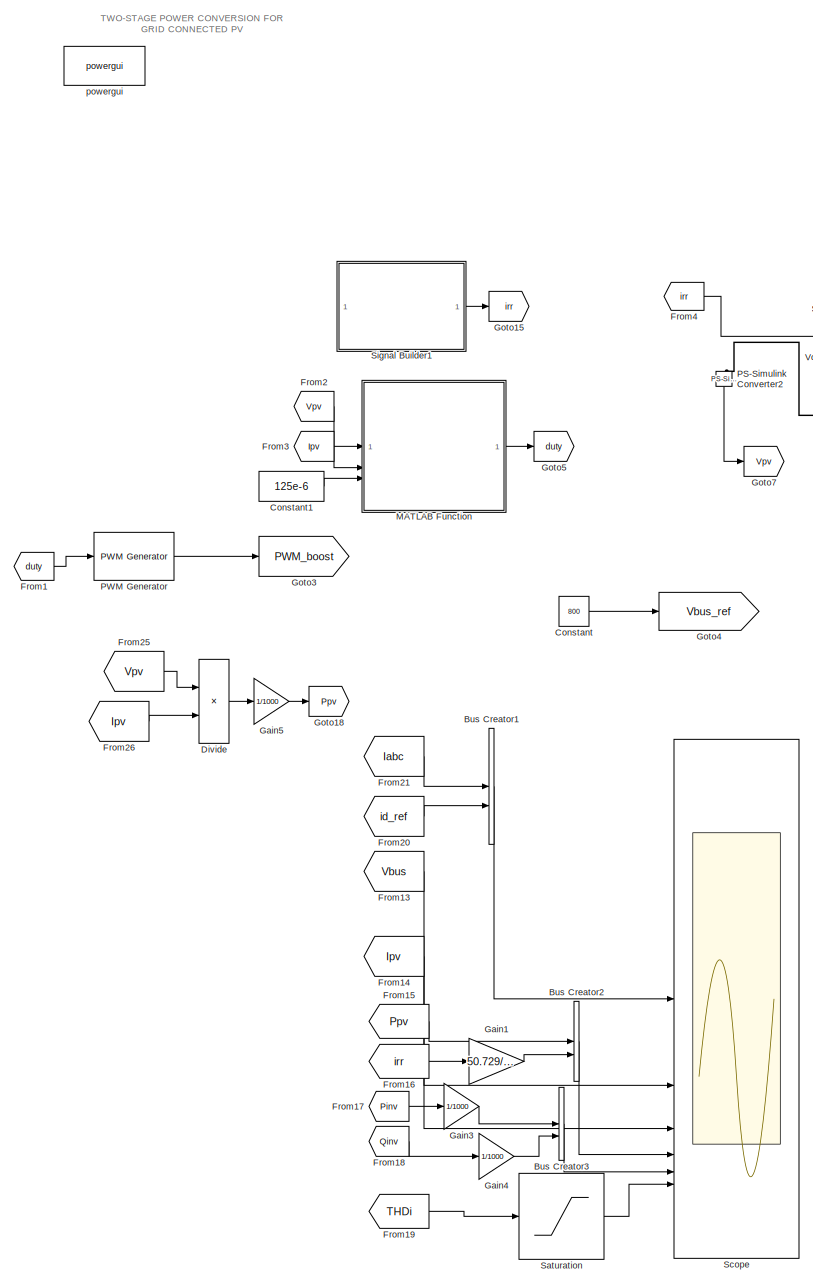
[diagram: root canvas - part 1/5, left side, full height]
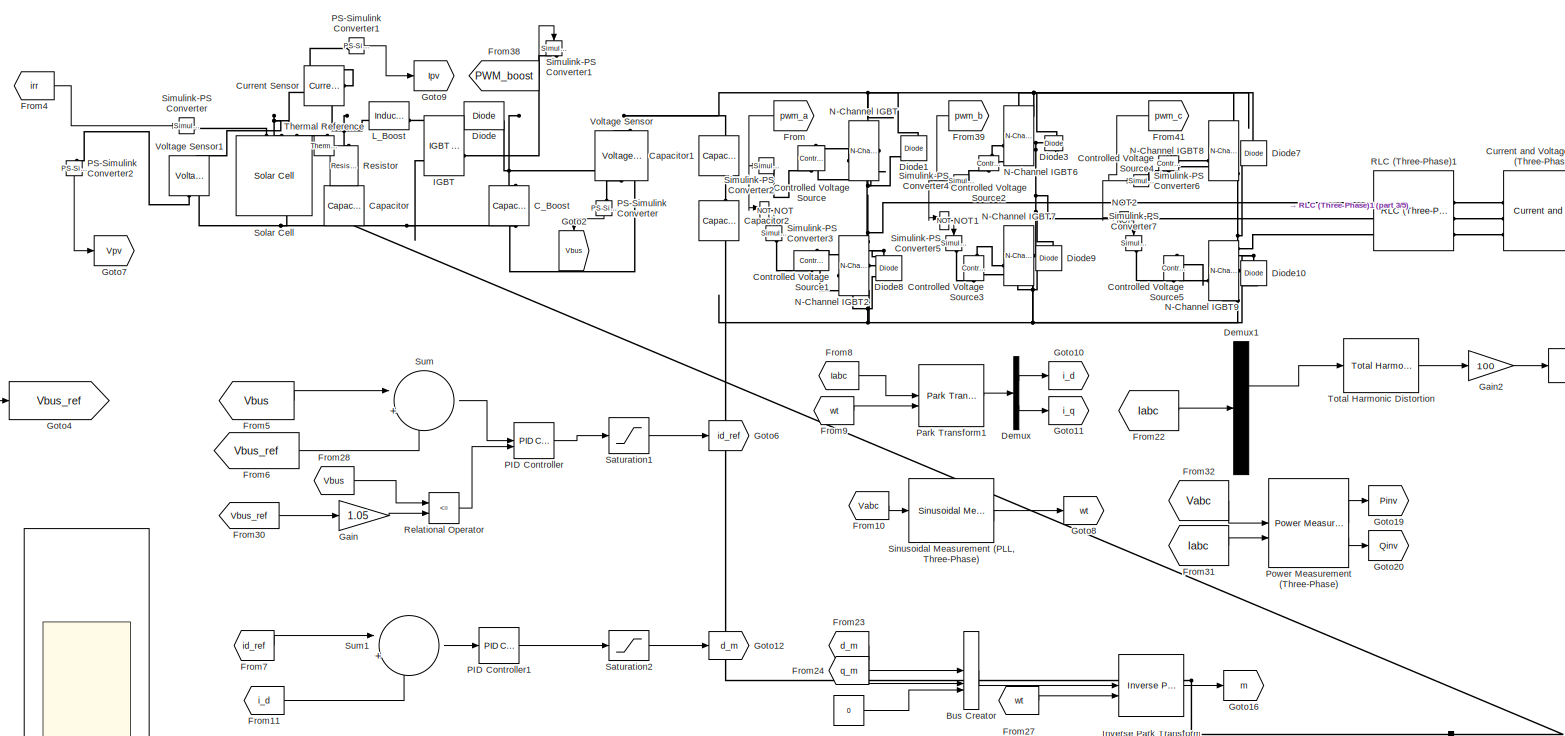
[diagram: root canvas - part 2/5, central region]
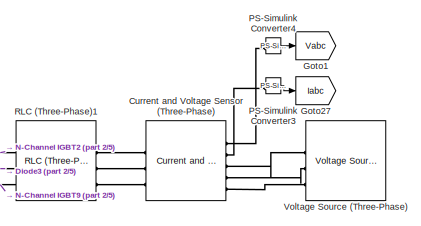
[diagram: root canvas - part 3/5, top right region]
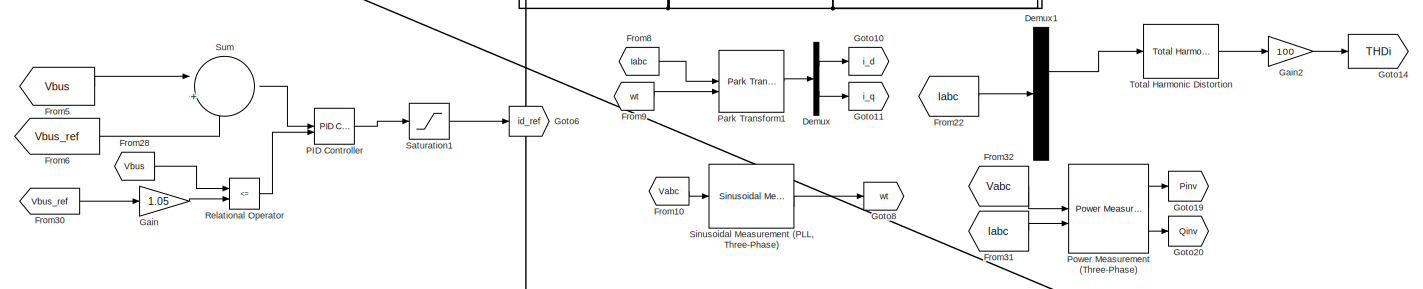
[diagram: root canvas - part 4/5, central region]
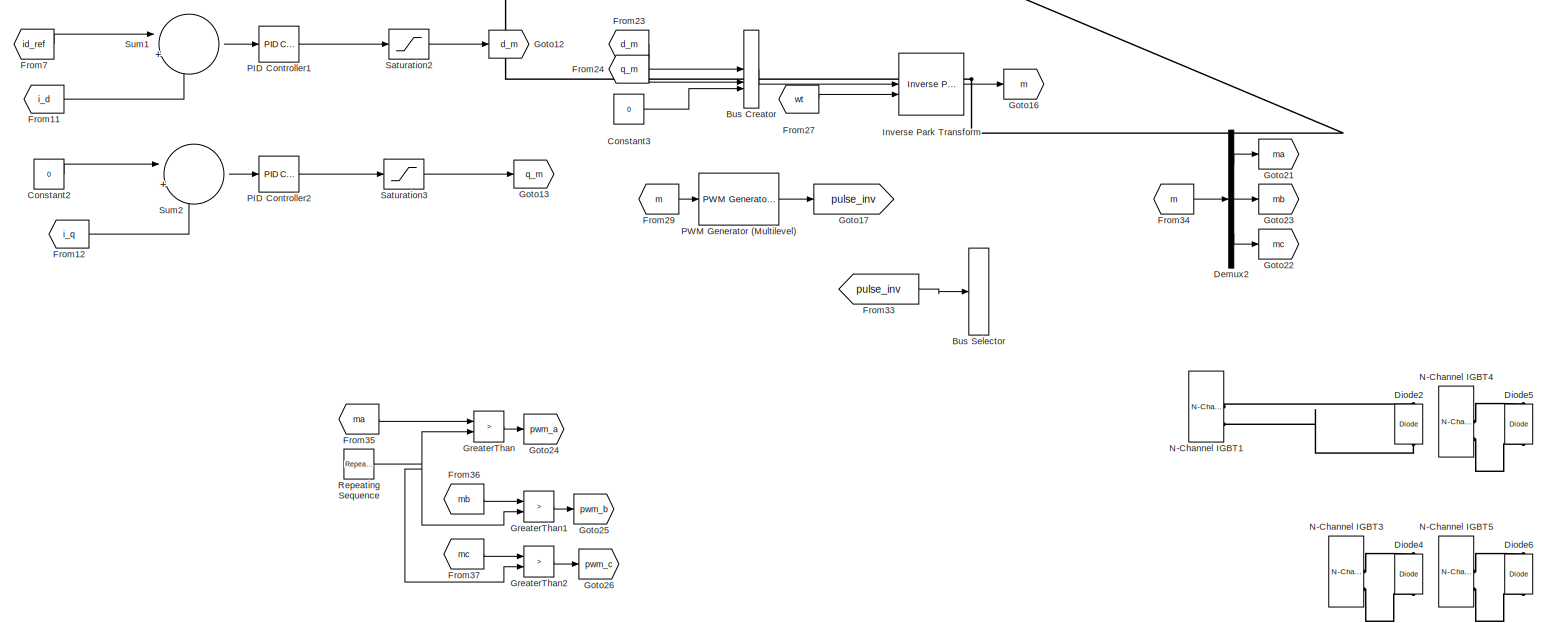
[diagram: root canvas - part 5/5, bottom right region]
MODEL slx_ec3324253b40
KIND model
CONFIG AbsTol = auto
CONFIG EnableMultiTasking = off
CONFIG FixedStep = Ts
CONFIG MaxStep = auto
CONFIG MinStep = auto
CONFIG RelTol = 1e-3
CONFIG SampleTimeConstraint = Unconstrained
CONFIG SolverName = FixedStepDiscrete
CONFIG StartTime = 0.0
CONFIG StopTime = 4
BLOCK [BusCreator] Bus Creator
  DisplayOption = bar
  InheritFromInputs = on
  Inputs = 3
BLOCK [BusCreator] Bus Creator1
  DisplayOption = bar
  InheritFromInputs = on
  Inputs = 2
BLOCK [BusCreator] Bus Creator2
  DisplayOption = bar
  InheritFromInputs = on
  Inputs = 2
BLOCK [BusCreator] Bus Creator3
  DisplayOption = bar
  InheritFromInputs = on
  Inputs = 2
BLOCK [BusSelector] Bus Selector
  OutputSignals = signal1,signal2
BLOCK [Reference] C_Boost  REF=fl_lib/Electrical/Electrical Elements/Capacitor
  NameLocation = left
  SourceBlock = fl_lib/Electrical/Electrical Elements/Capacitor
  SourceType = Capacitor
BLOCK [Reference] Capacitor  REF=fl_lib/Electrical/Electrical Elements/Capacitor
  NameLocation = left
  SourceBlock = fl_lib/Electrical/Electrical Elements/Capacitor
  SourceType = Capacitor
BLOCK [Reference] Capacitor1  REF=fl_lib/Electrical/Electrical Elements/Capacitor
  NameLocation = left
  SourceBlock = fl_lib/Electrical/Electrical Elements/Capacitor
  SourceType = Capacitor
BLOCK [Reference] Capacitor2  REF=fl_lib/Electrical/Electrical Elements/Capacitor
  NameLocation = left
  SourceBlock = fl_lib/Electrical/Electrical Elements/Capacitor
  SourceType = Capacitor
BLOCK [Constant] Constant
  Value = 800
BLOCK [Constant] Constant1
  Value = 125e-6
BLOCK [Constant] Constant2
  Value = 0
BLOCK [Constant] Constant3
  Value = 0
BLOCK [Reference] Controlled Voltage Source  REF=fl_lib/Electrical/Electrical Sources/Controlled Voltage
Source
  NameLocation = right
  SourceBlock = fl_lib/Electrical/Electrical Sources/Controlled Voltage\nSource
  SourceType = Controlled Voltage\nSource
BLOCK [Reference] Controlled Voltage Source1  REF=fl_lib/Electrical/Electrical Sources/Controlled Voltage
Source
  NameLocation = right
  SourceBlock = fl_lib/Electrical/Electrical Sources/Controlled Voltage\nSource
  SourceType = Controlled Voltage\nSource
BLOCK [Reference] Controlled Voltage Source2  REF=fl_lib/Electrical/Electrical Sources/Controlled Voltage
Source
  NameLocation = right
  SourceBlock = fl_lib/Electrical/Electrical Sources/Controlled Voltage\nSource
  SourceType = Controlled Voltage\nSource
BLOCK [Reference] Controlled Voltage Source3  REF=fl_lib/Electrical/Electrical Sources/Controlled Voltage
Source
  NameLocation = right
  SourceBlock = fl_lib/Electrical/Electrical Sources/Controlled Voltage\nSource
  SourceType = Controlled Voltage\nSource
BLOCK [Reference] Controlled Voltage Source4  REF=fl_lib/Electrical/Electrical Sources/Controlled Voltage
Source
  NameLocation = right
  SourceBlock = fl_lib/Electrical/Electrical Sources/Controlled Voltage\nSource
  SourceType = Controlled Voltage\nSource
BLOCK [Reference] Controlled Voltage Source5  REF=fl_lib/Electrical/Electrical Sources/Controlled Voltage
Source
  NameLocation = right
  SourceBlock = fl_lib/Electrical/Electrical Sources/Controlled Voltage\nSource
  SourceType = Controlled Voltage\nSource
BLOCK [Reference] Current Sensor  REF=fl_lib/Electrical/Electrical Sensors/Current Sensor
  SourceBlock = fl_lib/Electrical/Electrical Sensors/Current Sensor
  SourceType = Current Sensor
BLOCK [Reference] Current and Voltage Sensor (Three-Phase)  REF=ee_lib/Sensors &
Transducers/Current and Voltage
Sensor (Three-Phase)
  SourceBlock = ee_lib/Sensors &\nTransducers/Current and Voltage\nSensor (Three-Phase)
  SourceType = Current and Voltage\nSensor (Three-Phase)
BLOCK [Demux] Demux
  Outputs = 2
BLOCK [Demux] Demux1
  Outputs = 2
BLOCK [Demux] Demux2
  Outputs = 3
BLOCK [Reference] Diode  REF=fl_lib/Electrical/Electrical Elements/Diode
  SourceBlock = fl_lib/Electrical/Electrical Elements/Diode
  SourceType = Diode
BLOCK [Reference] Diode1  REF=fl_lib/Electrical/Electrical Elements/Diode
  NameLocation = right
  SourceBlock = fl_lib/Electrical/Electrical Elements/Diode
  SourceType = Diode
BLOCK [Reference] Diode10  REF=fl_lib/Electrical/Electrical Elements/Diode
  NameLocation = right
  SourceBlock = fl_lib/Electrical/Electrical Elements/Diode
  SourceType = Diode
BLOCK [Reference] Diode2  REF=fl_lib/Electrical/Electrical Elements/Diode
  NameLocation = right
  SourceBlock = fl_lib/Electrical/Electrical Elements/Diode
  SourceType = Diode
BLOCK [Reference] Diode3  REF=fl_lib/Electrical/Electrical Elements/Diode
  NameLocation = right
  SourceBlock = fl_lib/Electrical/Electrical Elements/Diode
  SourceType = Diode
BLOCK [Reference] Diode4  REF=fl_lib/Electrical/Electrical Elements/Diode
  NameLocation = right
  SourceBlock = fl_lib/Electrical/Electrical Elements/Diode
  SourceType = Diode
BLOCK [Reference] Diode5  REF=fl_lib/Electrical/Electrical Elements/Diode
  NameLocation = right
  SourceBlock = fl_lib/Electrical/Electrical Elements/Diode
  SourceType = Diode
BLOCK [Reference] Diode6  REF=fl_lib/Electrical/Electrical Elements/Diode
  NameLocation = right
  SourceBlock = fl_lib/Electrical/Electrical Elements/Diode
  SourceType = Diode
BLOCK [Reference] Diode7  REF=fl_lib/Electrical/Electrical Elements/Diode
  NameLocation = right
  SourceBlock = fl_lib/Electrical/Electrical Elements/Diode
  SourceType = Diode
BLOCK [Reference] Diode8  REF=fl_lib/Electrical/Electrical Elements/Diode
  NameLocation = right
  SourceBlock = fl_lib/Electrical/Electrical Elements/Diode
  SourceType = Diode
BLOCK [Reference] Diode9  REF=fl_lib/Electrical/Electrical Elements/Diode
  NameLocation = right
  SourceBlock = fl_lib/Electrical/Electrical Elements/Diode
  SourceType = Diode
BLOCK [Product] Divide
  Inputs = **
BLOCK [From] From
  GotoTag = pwm_a
  NameLocation = top
  TagVisibility = global
BLOCK [From] From1
  GotoTag = duty
  TagVisibility = global
BLOCK [From] From10
  GotoTag = Vabc
BLOCK [From] From11
  GotoTag = i_d
BLOCK [From] From12
  GotoTag = i_q
BLOCK [From] From13
  GotoTag = Vbus
BLOCK [From] From14
  GotoTag = Ipv
BLOCK [From] From15
  GotoTag = Ppv
BLOCK [From] From16
  GotoTag = irr
BLOCK [From] From17
  GotoTag = Pinv
  TagVisibility = global
BLOCK [From] From18
  GotoTag = Qinv
  TagVisibility = global
BLOCK [From] From19
  GotoTag = THDi
BLOCK [From] From2
  GotoTag = Vpv
BLOCK [From] From20
  GotoTag = id_ref
BLOCK [From] From21
  GotoTag = Iabc
BLOCK [From] From22
  GotoTag = Iabc
BLOCK [From] From23
  GotoTag = d_m
BLOCK [From] From24
  GotoTag = q_m
BLOCK [From] From25
  GotoTag = Vpv
BLOCK [From] From26
  GotoTag = Ipv
BLOCK [From] From27
  GotoTag = wt
BLOCK [From] From28
  GotoTag = Vbus
BLOCK [From] From29
  Commented = on
  GotoTag = m
BLOCK [From] From3
  GotoTag = Ipv
BLOCK [From] From30
  GotoTag = Vbus_ref
BLOCK [From] From31
  GotoTag = Iabc
BLOCK [From] From32
  GotoTag = Vabc
BLOCK [From] From33
  GotoTag = pulse_inv
BLOCK [From] From34
  GotoTag = m
BLOCK [From] From35
  GotoTag = ma
BLOCK [From] From36
  GotoTag = mb
BLOCK [From] From37
  GotoTag = mc
BLOCK [From] From38
  GotoTag = PWM_boost
  TagVisibility = global
BLOCK [From] From39
  GotoTag = pwm_b
  NameLocation = top
  TagVisibility = global
BLOCK [From] From4
  GotoTag = irr
BLOCK [From] From41
  GotoTag = pwm_c
  NameLocation = top
  TagVisibility = global
BLOCK [From] From5
  GotoTag = Vbus
  TagVisibility = global
BLOCK [From] From6
  GotoTag = Vbus_ref
BLOCK [From] From7
  GotoTag = id_ref
  TagVisibility = global
BLOCK [From] From8
  GotoTag = Iabc
BLOCK [From] From9
  GotoTag = wt
BLOCK [Gain] Gain
  Gain = 1.05
BLOCK [Gain] Gain1
  Gain = 50.729/1000
BLOCK [Gain] Gain2
  Gain = 100
BLOCK [Gain] Gain3
  Gain = 1/1000
BLOCK [Gain] Gain4
  Gain = 1/1000
BLOCK [Gain] Gain5
  Gain = 1/1000
BLOCK [Goto] Goto1
  GotoTag = Vabc
BLOCK [Goto] Goto10
  GotoTag = i_d
BLOCK [Goto] Goto11
  GotoTag = i_q
BLOCK [Goto] Goto12
  GotoTag = d_m
  TagVisibility = global
BLOCK [Goto] Goto13
  GotoTag = q_m
  TagVisibility = global
BLOCK [Goto] Goto14
  GotoTag = THDi
BLOCK [Goto] Goto15
  GotoTag = irr
BLOCK [Goto] Goto16
  GotoTag = m
BLOCK [Goto] Goto17
  Commented = on
  GotoTag = pulse_inv
BLOCK [Goto] Goto18
  GotoTag = Ppv
BLOCK [Goto] Goto19
  GotoTag = Pinv
  TagVisibility = global
BLOCK [Goto] Goto2
  GotoTag = Vbus
  NameLocation = left
  TagVisibility = global
BLOCK [Goto] Goto20
  GotoTag = Qinv
  TagVisibility = global
BLOCK [Goto] Goto21
  GotoTag = ma
BLOCK [Goto] Goto22
  GotoTag = mc
BLOCK [Goto] Goto23
  GotoTag = mb
BLOCK [Goto] Goto24
  GotoTag = pwm_a
  TagVisibility = global
BLOCK [Goto] Goto25
  GotoTag = pwm_b
  TagVisibility = global
BLOCK [Goto] Goto26
  GotoTag = pwm_c
  TagVisibility = global
BLOCK [Goto] Goto27
  GotoTag = Iabc
BLOCK [Goto] Goto3
  GotoTag = PWM_boost
  TagVisibility = global
BLOCK [Goto] Goto4
  GotoTag = Vbus_ref
BLOCK [Goto] Goto5
  GotoTag = duty
  TagVisibility = global
BLOCK [Goto] Goto6
  GotoTag = id_ref
  TagVisibility = global
BLOCK [Goto] Goto7
  GotoTag = Vpv
BLOCK [Goto] Goto8
  GotoTag = wt
BLOCK [Goto] Goto9
  GotoTag = Ipv
BLOCK [RelationalOperator] GreaterThan
  InputSameDT = off
  Operator = >
  OutDataTypeStr = boolean
  RndMeth = Simplest
BLOCK [RelationalOperator] GreaterThan1
  InputSameDT = off
  Operator = >
  OutDataTypeStr = boolean
  RndMeth = Simplest
BLOCK [RelationalOperator] GreaterThan2
  InputSameDT = off
  Operator = >
  OutDataTypeStr = boolean
  RndMeth = Simplest
BLOCK [Reference] IGBT  REF=ee_lib/Semiconductors &
Converters/IGBT
(Ideal,
Switching)
  SourceBlock = ee_lib/Semiconductors &\nConverters/IGBT\n(Ideal,\nSwitching)
  SourceType = IGBT\n(Ideal,\nSwitching)
BLOCK [Reference] Inverse Park Transform  REF=eeTransforms/Inverse
Park Transform
  LibrarySourceBlock = ee_sl_lib/Mathematical\nTransforms/Inverse\nPark Transform
  SourceBlock = eeTransforms/Inverse\nPark Transform
  SourceType = Inverse Park Transform
BLOCK [Reference] L_Boost  REF=fl_lib/Electrical/Electrical Elements/Inductor
  SourceBlock = fl_lib/Electrical/Electrical Elements/Inductor
  SourceType = Inductor
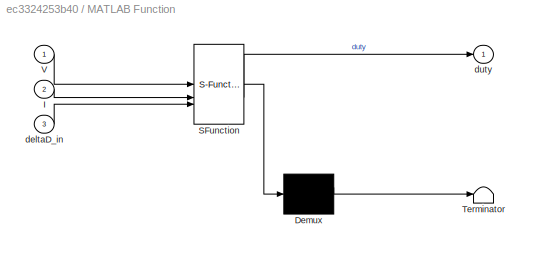
BLOCK [SubSystem] MATLAB Function
  ErrorFcn = Stateflow.Translate.translate
  PermitHierarchicalResolution = ExplicitOnly
  SFBlockType = MATLAB Function
  TreatAsAtomicUnit = on
BLOCK [Demux] MATLAB Function/ Demux 
  Outputs = 1
BLOCK [S-Function] MATLAB Function/ SFunction 
  EnableBusSupport = off
  FunctionName = sf_sfun
  PortCounts = [3 2]
  SFcnIsStateOwnerBlock = off
  SFunctionDeploymentMode = off
  Tag = Stateflow S-Function 2
BLOCK [Terminator] MATLAB Function/ Terminator 
BLOCK [Inport] MATLAB Function/I
  Port = 2
BLOCK [Inport] MATLAB Function/V
BLOCK [Inport] MATLAB Function/deltaD_in
  Port = 3
BLOCK [Outport] MATLAB Function/duty
  VectorParamsAs1DForOutWhenUnconnected = off
BLOCK [Reference] N-Channel IGBT  REF=ee_lib/Semiconductors &
Converters/N-Channel IGBT
  SourceBlock = ee_lib/Semiconductors &\nConverters/N-Channel IGBT
  SourceType = N-Channel IGBT
BLOCK [Reference] N-Channel IGBT1  REF=ee_lib/Semiconductors &
Converters/N-Channel IGBT
  SourceBlock = ee_lib/Semiconductors &\nConverters/N-Channel IGBT
  SourceType = N-Channel IGBT
BLOCK [Reference] N-Channel IGBT2  REF=ee_lib/Semiconductors &
Converters/N-Channel IGBT
  SourceBlock = ee_lib/Semiconductors &\nConverters/N-Channel IGBT
  SourceType = N-Channel IGBT
BLOCK [Reference] N-Channel IGBT3  REF=ee_lib/Semiconductors &
Converters/N-Channel IGBT
  SourceBlock = ee_lib/Semiconductors &\nConverters/N-Channel IGBT
  SourceType = N-Channel IGBT
BLOCK [Reference] N-Channel IGBT4  REF=ee_lib/Semiconductors &
Converters/N-Channel IGBT
  SourceBlock = ee_lib/Semiconductors &\nConverters/N-Channel IGBT
  SourceType = N-Channel IGBT
BLOCK [Reference] N-Channel IGBT5  REF=ee_lib/Semiconductors &
Converters/N-Channel IGBT
  SourceBlock = ee_lib/Semiconductors &\nConverters/N-Channel IGBT
  SourceType = N-Channel IGBT
BLOCK [Reference] N-Channel IGBT6  REF=ee_lib/Semiconductors &
Converters/N-Channel IGBT
  SourceBlock = ee_lib/Semiconductors &\nConverters/N-Channel IGBT
  SourceType = N-Channel IGBT
BLOCK [Reference] N-Channel IGBT7  REF=ee_lib/Semiconductors &
Converters/N-Channel IGBT
  SourceBlock = ee_lib/Semiconductors &\nConverters/N-Channel IGBT
  SourceType = N-Channel IGBT
BLOCK [Reference] N-Channel IGBT8  REF=ee_lib/Semiconductors &
Converters/N-Channel IGBT
  SourceBlock = ee_lib/Semiconductors &\nConverters/N-Channel IGBT
  SourceType = N-Channel IGBT
BLOCK [Reference] N-Channel IGBT9  REF=ee_lib/Semiconductors &
Converters/N-Channel IGBT
  SourceBlock = ee_lib/Semiconductors &\nConverters/N-Channel IGBT
  SourceType = N-Channel IGBT
BLOCK [Logic] NOT
  AllPortsSameDT = off
  IconShape = distinctive
  Operator = NOT
  OutDataTypeStr = boolean
BLOCK [Logic] NOT1
  AllPortsSameDT = off
  IconShape = distinctive
  Operator = NOT
  OutDataTypeStr = boolean
BLOCK [Logic] NOT2
  AllPortsSameDT = off
  IconShape = distinctive
  Operator = NOT
  OutDataTypeStr = boolean
BLOCK [Reference] PID Controller  REF=slpidlib/PID Controller
  LibrarySourceBlock = simulink/Continuous/PID Controller
  SourceBlock = slpidlib/PID Controller
  SourceType = PID 1dof
BLOCK [Reference] PID Controller1  REF=slpidlib/PID Controller
  LibrarySourceBlock = simulink/Continuous/PID Controller
  SourceBlock = slpidlib/PID Controller
  SourceType = PID 1dof
BLOCK [Reference] PID Controller2  REF=slpidlib/PID Controller
  LibrarySourceBlock = simulink/Continuous/PID Controller
  SourceBlock = slpidlib/PID Controller
  SourceType = PID 1dof
BLOCK [Reference] PS-Simulink Converter  REF=nesl_utility/PS-Simulink
Converter
  NameLocation = left
  SourceBlock = nesl_utility/PS-Simulink\nConverter
  SourceType = PS-Simulink\nConverter
BLOCK [Reference] PS-Simulink Converter1  REF=nesl_utility/PS-Simulink
Converter
  SourceBlock = nesl_utility/PS-Simulink\nConverter
  SourceType = PS-Simulink\nConverter
BLOCK [Reference] PS-Simulink Converter2  REF=nesl_utility/PS-Simulink
Converter
  NameLocation = left
  SourceBlock = nesl_utility/PS-Simulink\nConverter
  SourceType = PS-Simulink\nConverter
BLOCK [Reference] PS-Simulink Converter3  REF=nesl_utility/PS-Simulink
Converter
  SourceBlock = nesl_utility/PS-Simulink\nConverter
  SourceType = PS-Simulink\nConverter
BLOCK [Reference] PS-Simulink Converter4  REF=nesl_utility/PS-Simulink
Converter
  SourceBlock = nesl_utility/PS-Simulink\nConverter
  SourceType = PS-Simulink\nConverter
BLOCK [Reference] PWM Generator  REF=eePwmGenerator/PWM Generator
  LibrarySourceBlock = ee_sl_lib/Pulse Width\nModulation/PWM Generator
  SourceBlock = eePwmGenerator/PWM Generator
  SourceType = PWM Generator
BLOCK [Reference] PWM Generator (Multilevel)  REF=eePwmGeneratorMultilevel/PWM Generator
(Multilevel)
  Commented = on
  LibrarySourceBlock = ee_sl_lib/Pulse Width\nModulation/PWM Generator\n(Multilevel)
  SourceBlock = eePwmGeneratorMultilevel/PWM Generator\n(Multilevel)
  SourceType = PWM Generator (Multilevel)
BLOCK [Reference] Park Transform1  REF=eeTransforms/Park Transform
  LibrarySourceBlock = ee_sl_lib/Mathematical\nTransforms/Park Transform
  SourceBlock = eeTransforms/Park Transform
  SourceType = Park Transform
BLOCK [Reference] Power Measurement (Three-Phase)  REF=eePowerMeasurement/Power Measurement
(Three-Phase)
  LibrarySourceBlock = ee_sl_lib/Measurements/Power Measurement\n(Three-Phase)
  SourceBlock = eePowerMeasurement/Power Measurement\n(Three-Phase)
  SourceType = Power Measurement (Three-Phase)
BLOCK [Reference] RLC (Three-Phase)1  REF=ee_lib/Passive/RLC Assemblies/RLC (Three-Phase)
  SourceBlock = ee_lib/Passive/RLC Assemblies/RLC (Three-Phase)
  SourceType = RLC (Three-Phase)
BLOCK [RelationalOperator] Relational Operator
  InputSameDT = off
  Operator = <=
  OutDataTypeStr = boolean
  RndMeth = Simplest
BLOCK [Reference] Repeating Sequence  REF=simulink/Sources/Repeating
Sequence
  SourceBlock = simulink/Sources/Repeating\nSequence
  SourceType = Repeating table
BLOCK [Reference] Resistor  REF=fl_lib/Electrical/Electrical Elements/Resistor
  NameLocation = left
  SourceBlock = fl_lib/Electrical/Electrical Elements/Resistor
  SourceType = Resistor
BLOCK [Saturate] Saturation
  LowerLimit = 0
  UpperLimit = 15
BLOCK [Saturate] Saturation1
  LowerLimit = 0
  UpperLimit = 150
BLOCK [Saturate] Saturation2
  LowerLimit = -1.2
  UpperLimit = 1.2
BLOCK [Saturate] Saturation3
  LowerLimit = -1.2
  UpperLimit = 1.2
BLOCK [Scope] Scope
  ActiveDisplayYMaximum = 5.9324644558141468
  ActiveDisplayYMinimum = -0.59321732144132833
  Floating = off
  GraphicalSettings = {"GraphicalSettings":{"LegacySettings":true,"Style":{"AxesScalingProperties":{"ScaleAxesLimitsAtStop":false},"Style":{"PlotType":"Auto"}}}}
  LayoutDimensionsString = [3 2]
  MultipleDisplayCache = [{"MaxYLimMag":10,"MaxYLimReal":5.9324644558141468,"MinYLimMag":0,"MinYLimReal":-0.59321732144132833,"PlotAsMagnitudePhase":false,"ShowGrid":true,"ShowLegend":false,"Title":"%<SignalLabel>","YLabel":""},{"MaxYLimMag":10,"MaxYLimReal":5.9324644558141468,"MinYLimMag":0,"MinYLimReal":-0.59321732144132833,"PlotAsMagnitudePhase":false,"ShowGrid":true,"ShowLegend":false,"Title":"%<SignalLabel>","YLabel"...<+812ch>
  NumInputPorts = 6
  ScopeFrameLocation = container
  WasSavedAsWebScope = on
  WindowPosition = [128.000000,48.000000,1280.000000,768.000000,]
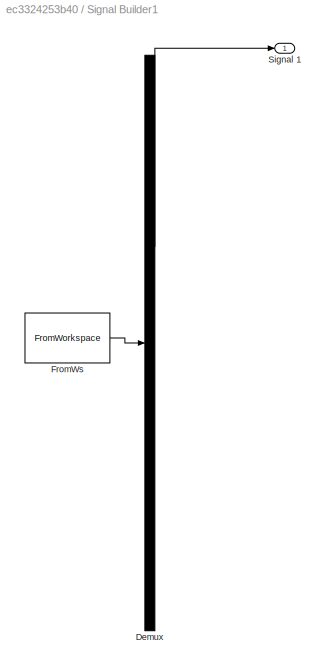
BLOCK [SubSystem] Signal Builder1
  ClipboardFcn = sigbuilder_block('clipboard');
  CloseFcn = sigbuilder_block('close');
  ContinueFcn = sigbuilder_block('continue');
  CopyFcn = sigbuilder_block('copy');
  DeleteFcn = sigbuilder_block('delete');
  LoadFcn = sigbuilder_block('load');
  MaskHideContents = on
  ModelCloseFcn = sigbuilder_block('modelClose');
  NameChangeFcn = sigbuilder_block('namechange');
  OpenFcn = sigbuilder_block('open',[252.75 107.25 644.25 387.75 ]);
  PauseFcn = sigbuilder_block('pause');
  PreSaveFcn = sigbuilder_block('preSave');
  StartFcn = sigbuilder_block('start');
  StopFcn = sigbuilder_block('stop');
  Tag = STV Subsys
BLOCK [Demux] Signal Builder1/Demux
  DisplayOption = none
  Outputs = 1
  Tag = STV Demux
BLOCK [FromWorkspace] Signal Builder1/FromWs
  Tag = STV FromWs
  VariableName = tuvar
BLOCK [Outport] Signal Builder1/Signal 1
  Tag = STV Outport
  VectorParamsAs1DForOutWhenUnconnected = off
BLOCK [Reference] Simulink-PS Converter  REF=nesl_utility/Simulink-PS
Converter
  SourceBlock = nesl_utility/Simulink-PS\nConverter
  SourceType = Simulink-PS\nConverter
BLOCK [Reference] Simulink-PS Converter1  REF=nesl_utility/Simulink-PS
Converter
  NameLocation = left
  SourceBlock = nesl_utility/Simulink-PS\nConverter
  SourceType = Simulink-PS\nConverter
BLOCK [Reference] Simulink-PS Converter2  REF=nesl_utility/Simulink-PS
Converter
  SourceBlock = nesl_utility/Simulink-PS\nConverter
  SourceType = Simulink-PS\nConverter
BLOCK [Reference] Simulink-PS Converter3  REF=nesl_utility/Simulink-PS
Converter
  NameLocation = left
  SourceBlock = nesl_utility/Simulink-PS\nConverter
  SourceType = Simulink-PS\nConverter
BLOCK [Reference] Simulink-PS Converter4  REF=nesl_utility/Simulink-PS
Converter
  SourceBlock = nesl_utility/Simulink-PS\nConverter
  SourceType = Simulink-PS\nConverter
BLOCK [Reference] Simulink-PS Converter5  REF=nesl_utility/Simulink-PS
Converter
  NameLocation = left
  SourceBlock = nesl_utility/Simulink-PS\nConverter
  SourceType = Simulink-PS\nConverter
BLOCK [Reference] Simulink-PS Converter6  REF=nesl_utility/Simulink-PS
Converter
  SourceBlock = nesl_utility/Simulink-PS\nConverter
  SourceType = Simulink-PS\nConverter
BLOCK [Reference] Simulink-PS Converter7  REF=nesl_utility/Simulink-PS
Converter
  NameLocation = left
  SourceBlock = nesl_utility/Simulink-PS\nConverter
  SourceType = Simulink-PS\nConverter
BLOCK [Reference] Sinusoidal Measurement (PLL, Three-Phase)  REF=eeSinusoidalMeasurementV2/Sinusoidal Measurement
(PLL, Three-Phase)
  LibrarySourceBlock = ee_sl_lib/Measurements/Sinusoidal Measurement\n(PLL, Three-Phase)
  SourceBlock = eeSinusoidalMeasurementV2/Sinusoidal Measurement\n(PLL, Three-Phase)
  SourceType = Sinusoidal Measurement (PLL, Three-Phase)
BLOCK [Reference] Solar Cell  REF=ee_lib/Sources/Solar Cell
  NameLocation = right
  SourceBlock = ee_lib/Sources/Solar Cell
  SourceType = Solar Cell
BLOCK [Sum] Sum
  Inputs = |+-
BLOCK [Sum] Sum1
  Inputs = |+-
BLOCK [Sum] Sum2
  Inputs = |+-
BLOCK [Reference] Thermal Reference  REF=fl_lib/Thermal/Thermal Elements/Thermal Reference
  NameLocation = right
  SourceBlock = fl_lib/Thermal/Thermal Elements/Thermal Reference
  SourceType = Thermal Reference
BLOCK [Reference] Total Harmonic Distortion  REF=eeTotalHarmonicDistorsion/Total Harmonic
Distortion
  LibrarySourceBlock = ee_sl_lib/Measurements/Total Harmonic\nDistortion
  SourceBlock = eeTotalHarmonicDistorsion/Total Harmonic\nDistortion
  SourceType = Total Harmonic Distortion
BLOCK [Reference] Voltage Sensor  REF=fl_lib/Electrical/Electrical Sensors/Voltage Sensor
  NameLocation = right
  SourceBlock = fl_lib/Electrical/Electrical Sensors/Voltage Sensor
  SourceType = Voltage Sensor
BLOCK [Reference] Voltage Sensor1  REF=fl_lib/Electrical/Electrical Sensors/Voltage Sensor
  NameLocation = right
  SourceBlock = fl_lib/Electrical/Electrical Sensors/Voltage Sensor
  SourceType = Voltage Sensor
BLOCK [Reference] Voltage Source (Three-Phase)  REF=ee_lib/Sources/Voltage
Source
(Three-Phase)
  SourceBlock = ee_lib/Sources/Voltage\nSource\n(Three-Phase)
  SourceType = Voltage\nSource\n(Three-Phase)
BLOCK [Reference] powergui  REF=spspowerguiLib/powergui
  Priority = 1
  SourceBlock = spspowerguiLib/powergui
  SourceType = PSB option menu block
ANNOTATION (root): TWO-STAGE POWER CONVERSION FOR GRID CONNECTED PV
LINE Bus Creator1:1 -> Scope:1
LINE Bus Creator2:1 -> Scope:4
LINE Bus Creator3:1 -> Scope:5
LINE Bus Creator:1 -> Inverse Park Transform:1
LINE Constant1:1 -> MATLAB Function:3
LINE Constant2:1 -> Sum2:1
LINE Constant3:1 -> Bus Creator:3
LINE Constant:1 -> Goto4:1
LINE Demux1:1 -> Total Harmonic Distortion:1
LINE Demux2:1 -> Goto21:1
LINE Demux2:2 -> Goto23:1
LINE Demux2:3 -> Goto22:1
LINE Demux:1 -> Goto10:1
LINE Demux:2 -> Goto11:1
LINE Divide:1 -> Gain5:1
LINE From10:1 -> Sinusoidal Measurement (PLL, Three-Phase):1
LINE From11:1 -> Sum1:2
LINE From12:1 -> Sum2:2
LINE From13:1 -> Scope:2
LINE From14:1 -> Scope:3
LINE From15:1 -> Bus Creator2:1
LINE From16:1 -> Gain1:1
LINE From17:1 -> Gain3:1
LINE From18:1 -> Gain4:1
LINE From19:1 -> Saturation:1
LINE From1:1 -> PWM Generator:1
LINE From20:1 -> Bus Creator1:2
LINE From21:1 -> Bus Creator1:1
LINE From22:1 -> Demux1:1
LINE From23:1 -> Bus Creator:1
LINE From24:1 -> Bus Creator:2
LINE From25:1 -> Divide:1
LINE From26:1 -> Divide:2
LINE From27:1 -> Inverse Park Transform:2
LINE From28:1 -> Relational Operator:1
LINE From29:1 -> PWM Generator (Multilevel):1
LINE From2:1 -> MATLAB Function:1
LINE From30:1 -> Gain:1
LINE From31:1 -> Power Measurement (Three-Phase):2
LINE From32:1 -> Power Measurement (Three-Phase):1
LINE From33:1 -> Bus Selector:1
LINE From34:1 -> Demux2:1
LINE From35:1 -> GreaterThan:1
LINE From36:1 -> GreaterThan1:1
LINE From37:1 -> GreaterThan2:1
LINE From38:1 -> Simulink-PS Converter1:1
NET From39:1 -> NOT1:1, Simulink-PS Converter4:1
LINE From3:1 -> MATLAB Function:2
NET From41:1 -> NOT2:1, Simulink-PS Converter6:1
LINE From4:1 -> Simulink-PS Converter:1
LINE From5:1 -> Sum:1
LINE From6:1 -> Sum:2
LINE From7:1 -> Sum1:1
LINE From8:1 -> Park Transform1:1
LINE From9:1 -> Park Transform1:2
NET From:1 -> NOT:1, Simulink-PS Converter2:1
LINE Gain1:1 -> Bus Creator2:2
LINE Gain2:1 -> Goto14:1
LINE Gain3:1 -> Bus Creator3:1
LINE Gain4:1 -> Bus Creator3:2
LINE Gain5:1 -> Goto18:1
LINE Gain:1 -> Relational Operator:2
LINE GreaterThan1:1 -> Goto25:1
LINE GreaterThan2:1 -> Goto26:1
LINE GreaterThan:1 -> Goto24:1
LINE Inverse Park Transform:1 -> Goto16:1
LINE MATLAB Function:1 -> Goto5:1
LINE NOT1:1 -> Simulink-PS Converter5:1
LINE NOT2:1 -> Simulink-PS Converter7:1
LINE NOT:1 -> Simulink-PS Converter3:1
LINE PID Controller1:1 -> Saturation2:1
LINE PID Controller2:1 -> Saturation3:1
LINE PID Controller:1 -> Saturation1:1
LINE PS-Simulink Converter1:1 -> Goto9:1
LINE PS-Simulink Converter2:1 -> Goto7:1
LINE PS-Simulink Converter3:1 -> Goto27:1
LINE PS-Simulink Converter4:1 -> Goto1:1
LINE PS-Simulink Converter:1 -> Goto2:1
LINE PWM Generator (Multilevel):1 -> Goto17:1
LINE PWM Generator:1 -> Goto3:1
LINE Park Transform1:1 -> Demux:1
LINE Power Measurement (Three-Phase):1 -> Goto19:1
LINE Power Measurement (Three-Phase):2 -> Goto20:1
LINE Relational Operator:1 -> PID Controller:2
NET Repeating Sequence:1 -> GreaterThan1:2, GreaterThan2:2, GreaterThan:2
LINE Saturation1:1 -> Goto6:1
LINE Saturation2:1 -> Goto12:1
LINE Saturation3:1 -> Goto13:1
LINE Saturation:1 -> Scope:6
LINE Signal Builder1:1 -> Goto15:1
LINE Sinusoidal Measurement (PLL, Three-Phase):2 -> Goto8:1
LINE Sum1:1 -> PID Controller1:1
LINE Sum2:1 -> PID Controller2:1
LINE Sum:1 -> PID Controller:1
LINE Total Harmonic Distortion:1 -> Gain2:1
PNET net1: C_Boost:LConn1 -- Capacitor1:LConn1 -- Diode1:RConn1 -- Diode3:RConn1 -- Diode7:RConn1 -- Diode:RConn1 -- N-Channel IGBT6:RConn1 -- N-Channel IGBT8:RConn1 -- N-Channel IGBT:RConn1 -- Voltage Sensor:LConn1
PNET net2: C_Boost:RConn1 -- Capacitor2:RConn1 -- Capacitor:RConn1 -- Controlled Voltage Source1:RConn2 -- Controlled Voltage Source3:RConn2 -- Controlled Voltage Source5:RConn2 -- Diode10:LConn1 -- Diode8:LConn1 -- Diode9:LConn1 -- IGBT:RConn2 -- N-Channel IGBT2:RConn2 -- N-Channel IGBT7:RConn2 -- N-Channel IGBT9:RConn2 -- Solar Cell:RConn1 -- Voltage Sensor1:RConn2 -- Voltage Sensor:RConn2
PLINE Capacitor1:RConn1 -- Capacitor2:LConn1
PLINE Capacitor:LConn1 -- Resistor:RConn1
PLINE Controlled Voltage Source1:LConn1 -- N-Channel IGBT2:LConn1
PLINE Controlled Voltage Source1:RConn1 -- Simulink-PS Converter3:RConn1
PLINE Controlled Voltage Source2:LConn1 -- N-Channel IGBT6:LConn1
PLINE Controlled Voltage Source2:RConn1 -- Simulink-PS Converter4:RConn1
PNET net3: Controlled Voltage Source2:RConn2 -- Diode3:LConn1 -- Diode9:RConn1 -- N-Channel IGBT6:RConn2 -- N-Channel IGBT7:RConn1 -- RLC (Three-Phase)1:LConn2
PLINE Controlled Voltage Source3:LConn1 -- N-Channel IGBT7:LConn1
PLINE Controlled Voltage Source3:RConn1 -- Simulink-PS Converter5:RConn1
PLINE Controlled Voltage Source4:LConn1 -- N-Channel IGBT8:LConn1
PLINE Controlled Voltage Source4:RConn1 -- Simulink-PS Converter6:RConn1
PNET net4: Controlled Voltage Source4:RConn2 -- Diode10:RConn1 -- Diode7:LConn1 -- N-Channel IGBT8:RConn2 -- N-Channel IGBT9:RConn1 -- RLC (Three-Phase)1:LConn3
PLINE Controlled Voltage Source5:LConn1 -- N-Channel IGBT9:LConn1
PLINE Controlled Voltage Source5:RConn1 -- Simulink-PS Converter7:RConn1
PLINE Controlled Voltage Source:LConn1 -- N-Channel IGBT:LConn1
PLINE Controlled Voltage Source:RConn1 -- Simulink-PS Converter2:RConn1
PNET net5: Controlled Voltage Source:RConn2 -- Diode1:LConn1 -- Diode8:RConn1 -- N-Channel IGBT2:RConn1 -- N-Channel IGBT:RConn2 -- RLC (Three-Phase)1:LConn1
PNET net6: Current Sensor:LConn1 -- Solar Cell:LConn2 -- Voltage Sensor1:LConn1
PLINE Current Sensor:RConn1 -- PS-Simulink Converter1:LConn1
PNET net7: Current Sensor:RConn2 -- L_Boost:LConn1 -- Resistor:LConn1
PLINE Current and Voltage Sensor (Three-Phase):LConn1 -- RLC (Three-Phase)1:RConn1
PLINE Current and Voltage Sensor (Three-Phase):LConn2 -- RLC (Three-Phase)1:RConn2
PLINE Current and Voltage Sensor (Three-Phase):LConn3 -- RLC (Three-Phase)1:RConn3
PLINE Current and Voltage Sensor (Three-Phase):RConn1 -- PS-Simulink Converter4:LConn1
PLINE Current and Voltage Sensor (Three-Phase):RConn2 -- PS-Simulink Converter3:LConn1
PLINE Current and Voltage Sensor (Three-Phase):RConn3 -- Voltage Source (Three-Phase):RConn1
PLINE Current and Voltage Sensor (Three-Phase):RConn4 -- Voltage Source (Three-Phase):RConn2
PLINE Current and Voltage Sensor (Three-Phase):RConn5 -- Voltage Source (Three-Phase):RConn3
PLINE Diode2:LConn1 -- N-Channel IGBT1:RConn2
PLINE Diode2:RConn1 -- N-Channel IGBT1:RConn1
PLINE Diode4:LConn1 -- N-Channel IGBT3:RConn2
PLINE Diode4:RConn1 -- N-Channel IGBT3:RConn1
PLINE Diode5:LConn1 -- N-Channel IGBT4:RConn2
PLINE Diode5:RConn1 -- N-Channel IGBT4:RConn1
PLINE Diode6:LConn1 -- N-Channel IGBT5:RConn2
PLINE Diode6:RConn1 -- N-Channel IGBT5:RConn1
PNET net8: Diode:LConn1 -- IGBT:RConn1 -- L_Boost:RConn1
PLINE IGBT:LConn1 -- Simulink-PS Converter1:RConn1
PLINE PS-Simulink Converter2:LConn1 -- Voltage Sensor1:RConn1
PLINE PS-Simulink Converter:LConn1 -- Voltage Sensor:RConn1
PLINE Simulink-PS Converter:RConn1 -- Solar Cell:LConn1
PLINE Solar Cell:LConn3 -- Thermal Reference:LConn1
note: NET lines group one-source signal fan-out (src -> all destinations, sorted); 1:1 wires keep LINE; PNET lines group multi-terminal physical nets as a canonical sorted terminal list (undirected conserving connections); 2-terminal nets keep the pairwise PLINE form
CHART MATLAB Function states=1 transitions=1
  STATE_LABEL 'eML_blk_kernel()'
  STATE_LABEL 'SCRIPT:\nfunction duty = MPPT_Kontrol( V, I,deltaD_in)\n\nduty_init = 0.05;\nduty_min=0;\nduty_max=0.75;\n\npersistent Vold Pold duty_old;\n\nif isempty(Vold)\n    Vold=0;\n    Pold=0;\n    duty_old=duty_init;\nend\nP= V*I;\ndV= V - Vold;\ndP= P - Pold;\nduty = duty_old;\ndeltaD=deltaD_in;\n\nif dP ~= 0\n    if dP < 0\n        if dV < 0\n            duty = duty_old - deltaD;\n        else\n            duty = duty_old + de...<+273ch>'
CHART  states=0 transitions=0
